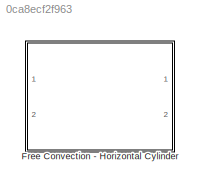
MODEL slx_0ca8ecf2f963
KIND library
CONFIG AbsTol = auto
CONFIG FixedStep = auto
CONFIG MaxStep = auto
CONFIG MinStep = auto
CONFIG RelTol = 1e-3
CONFIG SampleTimeConstraint = Unconstrained
CONFIG Solver = ode45
CONFIG SolverMode = Auto
CONFIG SolverName = ode45
CONFIG StartTime = 0.0
CONFIG StopTime = 10.0
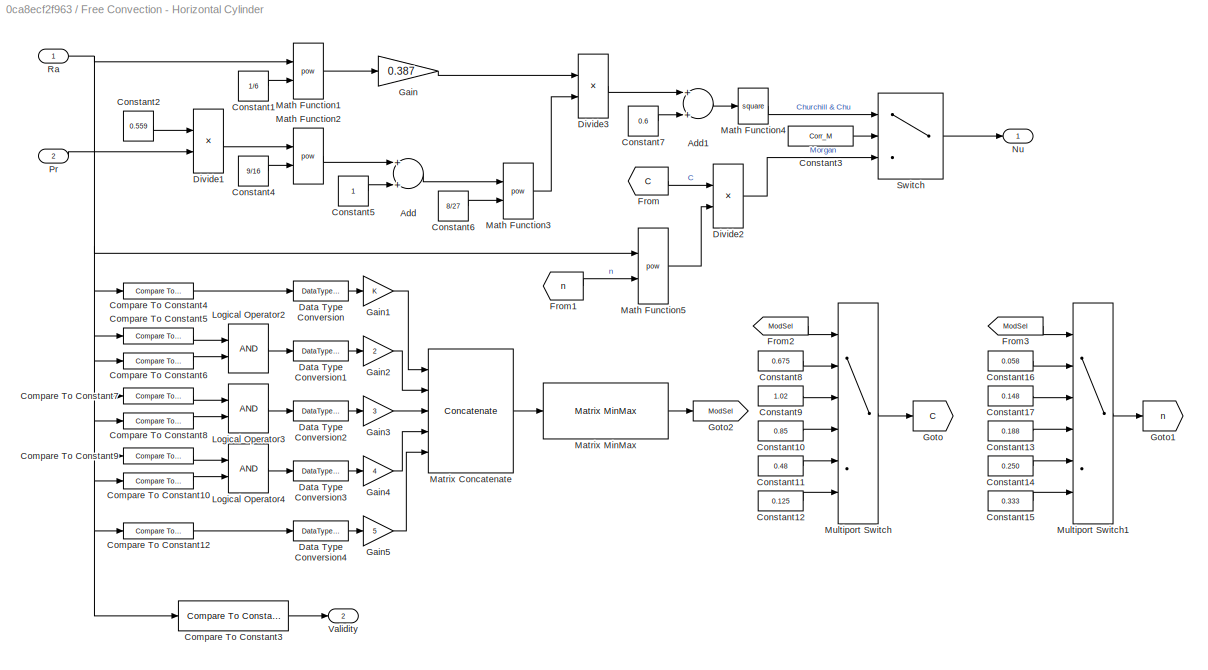
BLOCK [SubSystem] Free Convection - Horizontal Cylinder
  Ports = [2, 2]
  RequestExecContextInheritance = off
BLOCK [Sum] Free Convection - Horizontal Cylinder/Add
  InputSameDT = off
  OutDataTypeStr = Inherit: Inherit via internal rule
  Ports = [2, 1]
  SaturateOnIntegerOverflow = off
BLOCK [Sum] Free Convection - Horizontal Cylinder/Add1
  InputSameDT = off
  OutDataTypeStr = Inherit: Inherit via internal rule
  Ports = [2, 1]
  SaturateOnIntegerOverflow = off
BLOCK [Reference] Free Convection - Horizontal Cylinder/Compare To Constant10  REF=simulink/Logic and Bit
Operations/Compare
To Constant
  OutDataTypeStr = boolean
  Ports = [1, 1]
  SourceBlock = simulink/Logic and Bit\nOperations/Compare\nTo Constant
  SourceType = Compare To Constant
  ZeroCross = on
  const = 10^7
  relop = <
BLOCK [Reference] Free Convection - Horizontal Cylinder/Compare To Constant12  REF=simulink/Logic and Bit
Operations/Compare
To Constant
  OutDataTypeStr = boolean
  Ports = [1, 1]
  SourceBlock = simulink/Logic and Bit\nOperations/Compare\nTo Constant
  SourceType = Compare To Constant
  ZeroCross = on
  const = 10^7
  relop = >=
BLOCK [Reference] Free Convection - Horizontal Cylinder/Compare To Constant3  REF=simulink/Logic and Bit
Operations/Compare
To Constant
  OutDataTypeStr = boolean
  Ports = [1, 1]
  SourceBlock = simulink/Logic and Bit\nOperations/Compare\nTo Constant
  SourceType = Compare To Constant
  ZeroCross = on
  const = 10^12
  relop = >
BLOCK [Reference] Free Convection - Horizontal Cylinder/Compare To Constant4  REF=simulink/Logic and Bit
Operations/Compare
To Constant
  OutDataTypeStr = boolean
  Ports = [1, 1]
  SourceBlock = simulink/Logic and Bit\nOperations/Compare\nTo Constant
  SourceType = Compare To Constant
  ZeroCross = on
  const = 10^-2
  relop = <
BLOCK [Reference] Free Convection - Horizontal Cylinder/Compare To Constant5  REF=simulink/Logic and Bit
Operations/Compare
To Constant
  OutDataTypeStr = boolean
  Ports = [1, 1]
  SourceBlock = simulink/Logic and Bit\nOperations/Compare\nTo Constant
  SourceType = Compare To Constant
  ZeroCross = on
  const = 10^-2
  relop = >=
BLOCK [Reference] Free Convection - Horizontal Cylinder/Compare To Constant6  REF=simulink/Logic and Bit
Operations/Compare
To Constant
  OutDataTypeStr = boolean
  Ports = [1, 1]
  SourceBlock = simulink/Logic and Bit\nOperations/Compare\nTo Constant
  SourceType = Compare To Constant
  ZeroCross = on
  const = 10^2
  relop = <
BLOCK [Reference] Free Convection - Horizontal Cylinder/Compare To Constant7  REF=simulink/Logic and Bit
Operations/Compare
To Constant
  OutDataTypeStr = boolean
  Ports = [1, 1]
  SourceBlock = simulink/Logic and Bit\nOperations/Compare\nTo Constant
  SourceType = Compare To Constant
  ZeroCross = on
  const = 10^2
  relop = >=
BLOCK [Reference] Free Convection - Horizontal Cylinder/Compare To Constant8  REF=simulink/Logic and Bit
Operations/Compare
To Constant
  OutDataTypeStr = boolean
  Ports = [1, 1]
  SourceBlock = simulink/Logic and Bit\nOperations/Compare\nTo Constant
  SourceType = Compare To Constant
  ZeroCross = on
  const = 10^4
  relop = <
BLOCK [Reference] Free Convection - Horizontal Cylinder/Compare To Constant9  REF=simulink/Logic and Bit
Operations/Compare
To Constant
  OutDataTypeStr = boolean
  Ports = [1, 1]
  SourceBlock = simulink/Logic and Bit\nOperations/Compare\nTo Constant
  SourceType = Compare To Constant
  ZeroCross = on
  const = 10^4
  relop = >=
BLOCK [Constant] Free Convection - Horizontal Cylinder/Constant1
  Value = 1/6
BLOCK [Constant] Free Convection - Horizontal Cylinder/Constant10
  Value = 0.85
BLOCK [Constant] Free Convection - Horizontal Cylinder/Constant11
  Value = 0.48
BLOCK [Constant] Free Convection - Horizontal Cylinder/Constant12
  Value = 0.125
BLOCK [Constant] Free Convection - Horizontal Cylinder/Constant13
  Value = 0.188
BLOCK [Constant] Free Convection - Horizontal Cylinder/Constant14
  Value = 0.250
BLOCK [Constant] Free Convection - Horizontal Cylinder/Constant15
  Value = 0.333
BLOCK [Constant] Free Convection - Horizontal Cylinder/Constant16
  Value = 0.058
BLOCK [Constant] Free Convection - Horizontal Cylinder/Constant17
  Value = 0.148
BLOCK [Constant] Free Convection - Horizontal Cylinder/Constant2
  Value = 0.559
BLOCK [Constant] Free Convection - Horizontal Cylinder/Constant3
  Value = Corr_M
BLOCK [Constant] Free Convection - Horizontal Cylinder/Constant4
  Value = 9/16
BLOCK [Constant] Free Convection - Horizontal Cylinder/Constant5
BLOCK [Constant] Free Convection - Horizontal Cylinder/Constant6
  Value = 8/27
BLOCK [Constant] Free Convection - Horizontal Cylinder/Constant7
  Value = 0.6
BLOCK [Constant] Free Convection - Horizontal Cylinder/Constant8
  Value = 0.675
BLOCK [Constant] Free Convection - Horizontal Cylinder/Constant9
  Value = 1.02
BLOCK [DataTypeConversion] Free Convection - Horizontal Cylinder/Data Type Conversion
  OutDataTypeStr = double
  RndMeth = Floor
  SaturateOnIntegerOverflow = off
BLOCK [DataTypeConversion] Free Convection - Horizontal Cylinder/Data Type Conversion1
  OutDataTypeStr = double
  RndMeth = Floor
  SaturateOnIntegerOverflow = off
BLOCK [DataTypeConversion] Free Convection - Horizontal Cylinder/Data Type Conversion2
  OutDataTypeStr = double
  RndMeth = Floor
  SaturateOnIntegerOverflow = off
BLOCK [DataTypeConversion] Free Convection - Horizontal Cylinder/Data Type Conversion3
  OutDataTypeStr = double
  RndMeth = Floor
  SaturateOnIntegerOverflow = off
BLOCK [DataTypeConversion] Free Convection - Horizontal Cylinder/Data Type Conversion4
  OutDataTypeStr = double
  RndMeth = Floor
  SaturateOnIntegerOverflow = off
BLOCK [Product] Free Convection - Horizontal Cylinder/Divide1
  InputSameDT = off
  Inputs = */
  OutDataTypeStr = Inherit: Inherit via internal rule
  Ports = [2, 1]
  RndMeth = Floor
  SaturateOnIntegerOverflow = off
BLOCK [Product] Free Convection - Horizontal Cylinder/Divide2
  InputSameDT = off
  Inputs = **
  OutDataTypeStr = Inherit: Inherit via internal rule
  Ports = [2, 1]
  RndMeth = Floor
  SaturateOnIntegerOverflow = off
BLOCK [Product] Free Convection - Horizontal Cylinder/Divide3
  InputSameDT = off
  Inputs = */
  OutDataTypeStr = Inherit: Inherit via internal rule
  Ports = [2, 1]
  RndMeth = Floor
  SaturateOnIntegerOverflow = off
BLOCK [From] Free Convection - Horizontal Cylinder/From
  GotoTag = C
BLOCK [From] Free Convection - Horizontal Cylinder/From1
  GotoTag = n
BLOCK [From] Free Convection - Horizontal Cylinder/From2
  GotoTag = ModSel
BLOCK [From] Free Convection - Horizontal Cylinder/From3
  GotoTag = ModSel
BLOCK [Gain] Free Convection - Horizontal Cylinder/Gain
  Gain = 0.387
  OutDataTypeStr = Inherit: Inherit via internal rule
  ParamDataTypeStr = Inherit: Inherit via internal rule
  SaturateOnIntegerOverflow = off
BLOCK [Gain] Free Convection - Horizontal Cylinder/Gain1
  OutDataTypeStr = Inherit: Inherit via internal rule
  ParamDataTypeStr = Inherit: Inherit via internal rule
  SaturateOnIntegerOverflow = off
BLOCK [Gain] Free Convection - Horizontal Cylinder/Gain2
  Gain = 2
  OutDataTypeStr = Inherit: Inherit via internal rule
  ParamDataTypeStr = Inherit: Inherit via internal rule
  SaturateOnIntegerOverflow = off
BLOCK [Gain] Free Convection - Horizontal Cylinder/Gain3
  Gain = 3
  OutDataTypeStr = Inherit: Inherit via internal rule
  ParamDataTypeStr = Inherit: Inherit via internal rule
  SaturateOnIntegerOverflow = off
BLOCK [Gain] Free Convection - Horizontal Cylinder/Gain4
  Gain = 4
  OutDataTypeStr = Inherit: Inherit via internal rule
  ParamDataTypeStr = Inherit: Inherit via internal rule
  SaturateOnIntegerOverflow = off
BLOCK [Gain] Free Convection - Horizontal Cylinder/Gain5
  Gain = 5
  OutDataTypeStr = Inherit: Inherit via internal rule
  ParamDataTypeStr = Inherit: Inherit via internal rule
  SaturateOnIntegerOverflow = off
BLOCK [Goto] Free Convection - Horizontal Cylinder/Goto
  GotoTag = C
BLOCK [Goto] Free Convection - Horizontal Cylinder/Goto1
  GotoTag = n
BLOCK [Goto] Free Convection - Horizontal Cylinder/Goto2
  GotoTag = ModSel
BLOCK [Logic] Free Convection - Horizontal Cylinder/Logical Operator2
  AllPortsSameDT = off
  OutDataTypeStr = boolean
  Ports = [2, 1]
BLOCK [Logic] Free Convection - Horizontal Cylinder/Logical Operator3
  AllPortsSameDT = off
  OutDataTypeStr = boolean
  Ports = [2, 1]
BLOCK [Logic] Free Convection - Horizontal Cylinder/Logical Operator4
  AllPortsSameDT = off
  OutDataTypeStr = boolean
  Ports = [2, 1]
BLOCK [Math] Free Convection - Horizontal Cylinder/Math Function1
  Operator = pow
  Ports = [2, 1]
BLOCK [Math] Free Convection - Horizontal Cylinder/Math Function2
  Operator = pow
  Ports = [2, 1]
BLOCK [Math] Free Convection - Horizontal Cylinder/Math Function3
  Operator = pow
  Ports = [2, 1]
BLOCK [Math] Free Convection - Horizontal Cylinder/Math Function4
  Operator = square
  Ports = [1, 1]
BLOCK [Math] Free Convection - Horizontal Cylinder/Math Function5
  Operator = pow
  Ports = [2, 1]
BLOCK [Concatenate] Free Convection - Horizontal Cylinder/Matrix Concatenate
  ConcatenateDimension = 2
  Mode = Multidimensional array
  NumInputs = 5
  Ports = [5, 1]
BLOCK [Reference] Free Convection - Horizontal Cylinder/Matrix MinMax  REF=lib_GenTools_MinMax/Matrix MinMax
  BN_M = gcb
  Ports = [1, 1]
  SourceBlock = lib_GenTools_MinMax/Matrix MinMax
  SourceType = TSAT: Matrix MinMax Block
  all_M = off
  cols_M = off
  minmax_M = off
  rows_M = on
BLOCK [MultiPortSwitch] Free Convection - Horizontal Cylinder/Multiport Switch
  InputSameDT = off
  Inputs = 5
  Ports = [6, 1]
  SaturateOnIntegerOverflow = off
BLOCK [MultiPortSwitch] Free Convection - Horizontal Cylinder/Multiport Switch1
  InputSameDT = off
  Inputs = 5
  Ports = [6, 1]
  SaturateOnIntegerOverflow = off
BLOCK [Outport] Free Convection - Horizontal Cylinder/Nu
  IconDisplay = Port number
BLOCK [Inport] Free Convection - Horizontal Cylinder/Pr
  IconDisplay = Port number
  Port = 2
BLOCK [Inport] Free Convection - Horizontal Cylinder/Ra
  IconDisplay = Port number
BLOCK [Switch] Free Convection - Horizontal Cylinder/Switch
  Criteria = u2 > Threshold
  InputSameDT = off
  SaturateOnIntegerOverflow = off
  Threshold = 1.5
BLOCK [Outport] Free Convection - Horizontal Cylinder/Validity
  IconDisplay = Port number
  Port = 2
LINE Free Convection - Horizontal Cylinder/Add1:1 -> Free Convection - Horizontal Cylinder/Math Function4:1
LINE Free Convection - Horizontal Cylinder/Add:1 -> Free Convection - Horizontal Cylinder/Math Function3:1
LINE Free Convection - Horizontal Cylinder/Compare To Constant10:1 -> Free Convection - Horizontal Cylinder/Logical Operator4:2
LINE Free Convection - Horizontal Cylinder/Compare To Constant12:1 -> Free Convection - Horizontal Cylinder/Data Type Conversion4:1
LINE Free Convection - Horizontal Cylinder/Compare To Constant3:1 -> Free Convection - Horizontal Cylinder/Validity:1
LINE Free Convection - Horizontal Cylinder/Compare To Constant4:1 -> Free Convection - Horizontal Cylinder/Data Type Conversion:1
LINE Free Convection - Horizontal Cylinder/Compare To Constant5:1 -> Free Convection - Horizontal Cylinder/Logical Operator2:1
LINE Free Convection - Horizontal Cylinder/Compare To Constant6:1 -> Free Convection - Horizontal Cylinder/Logical Operator2:2
LINE Free Convection - Horizontal Cylinder/Compare To Constant7:1 -> Free Convection - Horizontal Cylinder/Logical Operator3:1
LINE Free Convection - Horizontal Cylinder/Compare To Constant8:1 -> Free Convection - Horizontal Cylinder/Logical Operator3:2
LINE Free Convection - Horizontal Cylinder/Compare To Constant9:1 -> Free Convection - Horizontal Cylinder/Logical Operator4:1
LINE Free Convection - Horizontal Cylinder/Constant10:1 -> Free Convection - Horizontal Cylinder/Multiport Switch:4
LINE Free Convection - Horizontal Cylinder/Constant11:1 -> Free Convection - Horizontal Cylinder/Multiport Switch:5
LINE Free Convection - Horizontal Cylinder/Constant12:1 -> Free Convection - Horizontal Cylinder/Multiport Switch:6
LINE Free Convection - Horizontal Cylinder/Constant13:1 -> Free Convection - Horizontal Cylinder/Multiport Switch1:4
LINE Free Convection - Horizontal Cylinder/Constant14:1 -> Free Convection - Horizontal Cylinder/Multiport Switch1:5
LINE Free Convection - Horizontal Cylinder/Constant15:1 -> Free Convection - Horizontal Cylinder/Multiport Switch1:6
LINE Free Convection - Horizontal Cylinder/Constant16:1 -> Free Convection - Horizontal Cylinder/Multiport Switch1:2
LINE Free Convection - Horizontal Cylinder/Constant17:1 -> Free Convection - Horizontal Cylinder/Multiport Switch1:3
LINE Free Convection - Horizontal Cylinder/Constant1:1 -> Free Convection - Horizontal Cylinder/Math Function1:2
LINE Free Convection - Horizontal Cylinder/Constant2:1 -> Free Convection - Horizontal Cylinder/Divide1:1
LINE Free Convection - Horizontal Cylinder/Constant3:1 -> Free Convection - Horizontal Cylinder/Switch:2
LINE Free Convection - Horizontal Cylinder/Constant4:1 -> Free Convection - Horizontal Cylinder/Math Function2:2
LINE Free Convection - Horizontal Cylinder/Constant5:1 -> Free Convection - Horizontal Cylinder/Add:2
LINE Free Convection - Horizontal Cylinder/Constant6:1 -> Free Convection - Horizontal Cylinder/Math Function3:2
LINE Free Convection - Horizontal Cylinder/Constant7:1 -> Free Convection - Horizontal Cylinder/Add1:2
LINE Free Convection - Horizontal Cylinder/Constant8:1 -> Free Convection - Horizontal Cylinder/Multiport Switch:2
LINE Free Convection - Horizontal Cylinder/Constant9:1 -> Free Convection - Horizontal Cylinder/Multiport Switch:3
LINE Free Convection - Horizontal Cylinder/Data Type Conversion1:1 -> Free Convection - Horizontal Cylinder/Gain2:1
LINE Free Convection - Horizontal Cylinder/Data Type Conversion2:1 -> Free Convection - Horizontal Cylinder/Gain3:1
LINE Free Convection - Horizontal Cylinder/Data Type Conversion3:1 -> Free Convection - Horizontal Cylinder/Gain4:1
LINE Free Convection - Horizontal Cylinder/Data Type Conversion4:1 -> Free Convection - Horizontal Cylinder/Gain5:1
LINE Free Convection - Horizontal Cylinder/Data Type Conversion:1 -> Free Convection - Horizontal Cylinder/Gain1:1
LINE Free Convection - Horizontal Cylinder/Divide1:1 -> Free Convection - Horizontal Cylinder/Math Function2:1
LINE Free Convection - Horizontal Cylinder/Divide2:1 -> Free Convection - Horizontal Cylinder/Switch:3
LINE Free Convection - Horizontal Cylinder/Divide3:1 -> Free Convection - Horizontal Cylinder/Add1:1
LINE Free Convection - Horizontal Cylinder/From1:1 -> Free Convection - Horizontal Cylinder/Math Function5:2
LINE Free Convection - Horizontal Cylinder/From2:1 -> Free Convection - Horizontal Cylinder/Multiport Switch:1
LINE Free Convection - Horizontal Cylinder/From3:1 -> Free Convection - Horizontal Cylinder/Multiport Switch1:1
LINE Free Convection - Horizontal Cylinder/From:1 -> Free Convection - Horizontal Cylinder/Divide2:1
LINE Free Convection - Horizontal Cylinder/Gain1:1 -> Free Convection - Horizontal Cylinder/Matrix Concatenate:1
LINE Free Convection - Horizontal Cylinder/Gain2:1 -> Free Convection - Horizontal Cylinder/Matrix Concatenate:2
LINE Free Convection - Horizontal Cylinder/Gain3:1 -> Free Convection - Horizontal Cylinder/Matrix Concatenate:3
LINE Free Convection - Horizontal Cylinder/Gain4:1 -> Free Convection - Horizontal Cylinder/Matrix Concatenate:4
LINE Free Convection - Horizontal Cylinder/Gain5:1 -> Free Convection - Horizontal Cylinder/Matrix Concatenate:5
LINE Free Convection - Horizontal Cylinder/Gain:1 -> Free Convection - Horizontal Cylinder/Divide3:1
LINE Free Convection - Horizontal Cylinder/Logical Operator2:1 -> Free Convection - Horizontal Cylinder/Data Type Conversion1:1
LINE Free Convection - Horizontal Cylinder/Logical Operator3:1 -> Free Convection - Horizontal Cylinder/Data Type Conversion2:1
LINE Free Convection - Horizontal Cylinder/Logical Operator4:1 -> Free Convection - Horizontal Cylinder/Data Type Conversion3:1
LINE Free Convection - Horizontal Cylinder/Math Function1:1 -> Free Convection - Horizontal Cylinder/Gain:1
LINE Free Convection - Horizontal Cylinder/Math Function2:1 -> Free Convection - Horizontal Cylinder/Add:1
LINE Free Convection - Horizontal Cylinder/Math Function3:1 -> Free Convection - Horizontal Cylinder/Divide3:2
LINE Free Convection - Horizontal Cylinder/Math Function4:1 -> Free Convection - Horizontal Cylinder/Switch:1
LINE Free Convection - Horizontal Cylinder/Math Function5:1 -> Free Convection - Horizontal Cylinder/Divide2:2
LINE Free Convection - Horizontal Cylinder/Matrix Concatenate:1 -> Free Convection - Horizontal Cylinder/Matrix MinMax:1
LINE Free Convection - Horizontal Cylinder/Matrix MinMax:1 -> Free Convection - Horizontal Cylinder/Goto2:1
LINE Free Convection - Horizontal Cylinder/Multiport Switch1:1 -> Free Convection - Horizontal Cylinder/Goto1:1
LINE Free Convection - Horizontal Cylinder/Multiport Switch:1 -> Free Convection - Horizontal Cylinder/Goto:1
LINE Free Convection - Horizontal Cylinder/Pr:1 -> Free Convection - Horizontal Cylinder/Divide1:2
NET Free Convection - Horizontal Cylinder/Ra:1 -> Free Convection - Horizontal Cylinder/Compare To Constant10:1, Free Convection - Horizontal Cylinder/Compare To Constant12:1, Free Convection - Horizontal Cylinder/Compare To Constant3:1, Free Convection - Horizontal Cylinder/Compare To Constant4:1, Free Convection - Horizontal Cylinder/Compare To Constant5:1, Free Convection - Horizontal Cylinder/Compare To Constant6:1, Free Convection - Horizontal Cylinder/Compare To Constant7:1, Free Convection - Horizontal Cylinder/Compare To Constant8:1, Free Convection - Horizontal Cylinder/Compare To Constant9:1, Free Convection - Horizontal Cylinder/Math Function1:1, Free Convection - Horizontal Cylinder/Math Function5:1
LINE Free Convection - Horizontal Cylinder/Switch:1 -> Free Convection - Horizontal Cylinder/Nu:1
note: NET lines group one-source signal fan-out (src -> all destinations, sorted); 1:1 wires keep LINE
